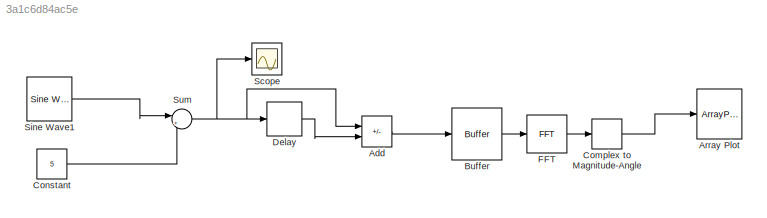
MODEL slx_3a1c6d84ac5e
KIND model
CONFIG AbsTol = auto
CONFIG EnableMultiTasking = off
CONFIG FixedStep = 0.00002
CONFIG MaxStep = auto
CONFIG MinStep = auto
CONFIG RelTol = 1e-3
CONFIG SampleTimeConstraint = Unconstrained
CONFIG SolverName = FixedStepDiscrete
CONFIG StartTime = 0.0
CONFIG StopTime = 0.03
BLOCK [Sum] Add
  IconShape = rectangular
  Inputs = +-
BLOCK [ArrayPlot] Array Plot
  GraphicalSettings = {"Style":{"BackgroundColor":[0.12941176470588237,0.12941176470588237,0.12941176470588237],"AxesColor":[0.07058823529411765,0.07058823529411765,0.07058823529411765],"LabelsColor":[0.8509803921568627,0.8509803921568627,0.8509803921568627],"PreserveColors":false,"Visible":[true],"LineStyle":["-"],"LineColor":[[1,0.9098039215686274,0.39215686274509803]],"LineWidth":[1.5],"Marker":["o"],"FontSize":"sma...<+551ch>
  ScopeFrameLocation = window
  Visible = on
  WasSavedAsWebScope = on
  WindowPosition = [796.000000,133.000000,560.000000,408.000000,]
  YLimits = [-93.5693 93.5693]
BLOCK [Buffer] Buffer
  N = 128
  OutputFrames = off
BLOCK [ComplexToMagnitudeAngle] Complex to Magnitude-Angle
  Output = Magnitude
BLOCK [Constant] Constant
  SampleTime = 0.00002
  Value = 5
BLOCK [Delay] Delay
  DelayLength = 1
  InitialCondition = 0
  InputPortMap = u0
  SampleTime = 0.00002
BLOCK [Reference] FFT  REF=dspxfrm3/FFT
  SourceBlock = dspxfrm3/FFT
  SourceType = FFT
BLOCK [Scope] Scope
  Floating = off
  NumInputPorts = 1
  ScopeSpecificationString = Simulink.scopes.TimeScopeBlockCfg('CurrentConfiguration', extmgr.ConfigurationSet(extmgr.Configuration('Core','General UI',true),extmgr.Configuration('Core','Source UI',true),extmgr.Configuration('Sources','WiredSimulink',true),extmgr.Configuration('Visuals','Time Domain',true,'SerializedDisplays',{struct('MinYLimReal','3.91059','MaxYLimReal','6.14527','YLabelReal','','MinYLimMag','3.91059','MaxYL...<+1436ch>
BLOCK [Reference] Sine Wave1  REF=dspsrcs4/Sine Wave
  SourceBlock = dspsrcs4/Sine Wave
  SourceType = Sine Wave
BLOCK [Sum] Sum
  Inputs = |++
LINE Add:1 -> Buffer:1
LINE Buffer:1 -> FFT:1
LINE Complex to Magnitude-Angle:1 -> Array Plot:1
LINE Constant:1 -> Sum:2
LINE Delay:1 -> Add:2
LINE FFT:1 -> Complex to Magnitude-Angle:1
LINE Sine Wave1:1 -> Sum:1
NET Sum:1 -> Add:1, Delay:1, Scope:1
note: NET lines group one-source signal fan-out (src -> all destinations, sorted); 1:1 wires keep LINE
